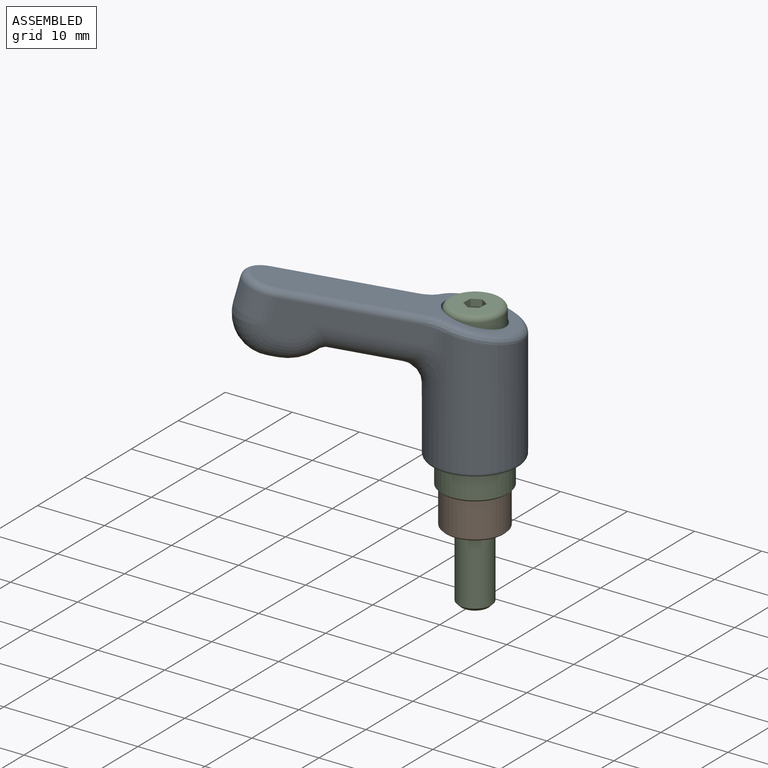
[diagram: assembled view]
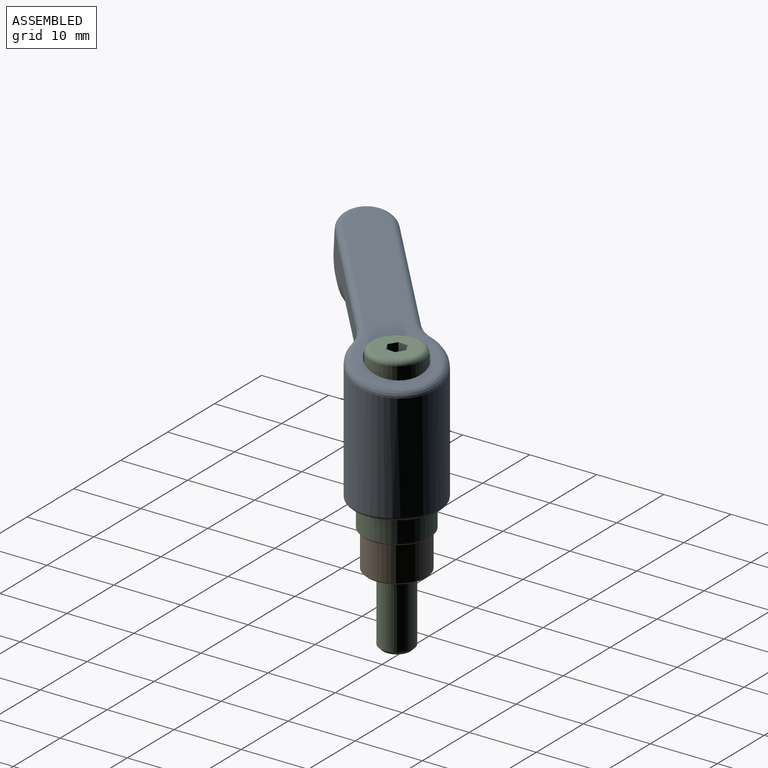
[diagram: assembled view, second angle]
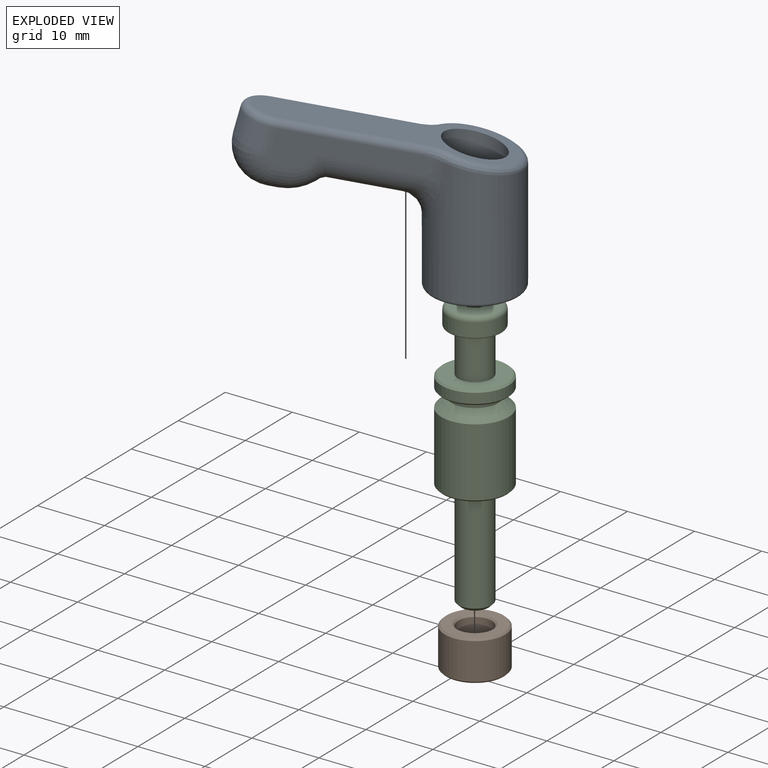
[diagram: exploded view]
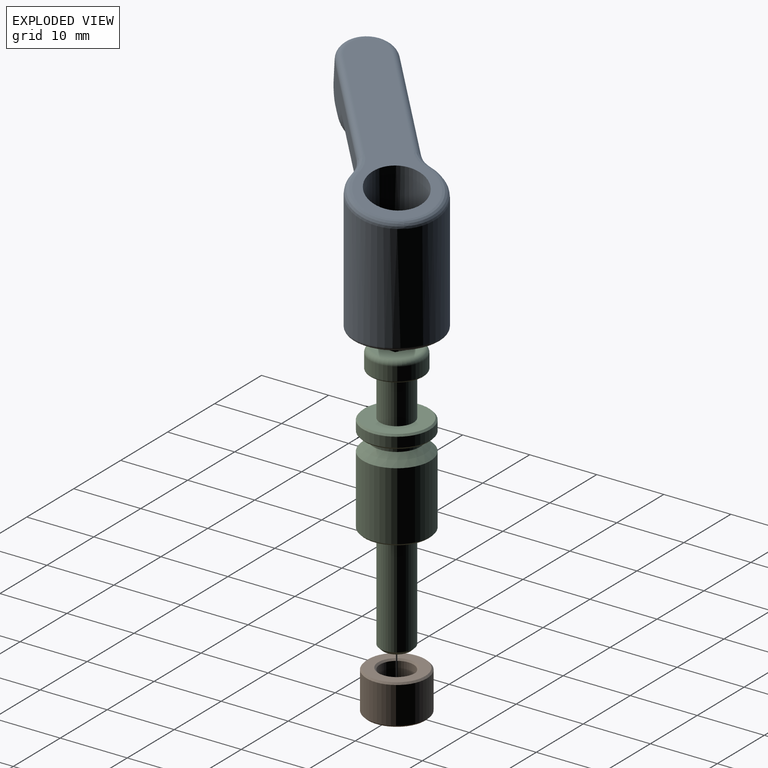
[diagram: exploded view, second angle]
ASSEMBLY  parts=3 mates=2
PART A: 29 faces, bbox 39.1x16.3x28.8 mm
  f0: cylinder r=4.15mm len=8.3mm, axis (0,0,-1), area 183.8mm2, adj f10,f11
  f1: torus R=6mm, axis (0,0,1), area 31.2mm2, adj f5,f7
  f2: bspline ~10.71x6.5mm, area 21mm2, adj f5,f10,f23,f25
  f3: torus R=1.5mm, axis (0,-1,0), area 79.9mm2, adj f8,f9,f18,f19
  f4: cylinder r=2.5mm len=5mm, axis (0,0,-1), area 15.7mm2, adj f11,f12
  f5: cylinder r=6.5mm len=18.47mm, axis (0,0,-1), area 632.7mm2, adj f1,f2,f14,f15,f16,f17,f23
  f6: cylinder r=5.1mm len=11mm, axis (0,0,-1), area 352.5mm2, adj f7,f12
  f7: plane 12x12mm, normal (0,0,-1), area 31.4mm2, adj f1,f6
  f8: plane 19.2x7.48mm, normal (0,-1,0), area 59.7mm2, adj f3,f13,f14,f18,f19,f20,f27
  f9: plane 19.2x7.48mm, normal (0,1,0), area 59.7mm2, adj f3,f13,f17,f18,f19,f20,f26
  f10: plane 35.66x13.22mm, normal (-0.26,0,0.97), area 180.8mm2, adj f0,f2,f23,f24,f25,f26,f27,f28
  f11: plane 8.3x8.3mm, normal (0,0,1), area 34.5mm2, adj f0,f4
  f12: plane 10.2x10.2mm, normal (0,0,-1), area 62.1mm2, adj f4,f6
  f13: cylinder r=4mm len=14.73mm, axis (-0.97,0,-0.26), area 148.2mm2, adj f8,f9,f15,f16,f21,f22
  f14: cylinder r=4mm len=2.59mm, axis (0,0,-1), area 6.1mm2, adj f5,f8,f15,f25
  f15: bspline ~7.29x5.25mm, area 30.2mm2, adj f5,f13,f14,f16
  f16: bspline ~7.29x5.25mm, area 30.2mm2, adj f5,f13,f15,f17
  f17: cylinder r=4mm len=2.59mm, axis (0,0,-1), area 6.1mm2, adj f5,f9,f16,f24
  f18: cylinder r=4mm len=8mm, axis (0.26,0,-0.97), area 44mm2, adj f3,f8,f9,f28
  f19: cylinder r=4mm len=8mm, axis (-0.97,0,-0.26), area 17.3mm2, adj f3,f8,f9,f20
  f20: torus R=2.5mm, axis (0,-1,0), area 73.3mm2, adj f8,f9,f19,f21,f22
  f21: bspline ~4.79x4mm, area 2.4mm2, adj f13,f20,f22
  f22: bspline ~4.79x4mm, area 2.4mm2, adj f13,f20,f21
  f23: bspline ~10.71x6.5mm, area 21mm2, adj f2,f5,f10,f24
  f24: bspline ~3.5x2.11mm, area 5.3mm2, adj f10,f17,f23,f26
  f25: bspline ~3.5x2.11mm, area 5.3mm2, adj f2,f10,f14,f27
  f26: cylinder r=1mm len=18.5mm, axis (-0.97,0,-0.26), area 29.7mm2, adj f9,f10,f24,f28
  f27: cylinder r=1mm len=18.5mm, axis (0.97,0,0.26), area 29.7mm2, adj f8,f10,f25,f28
  f28: torus R=3mm, axis (0.26,0,-0.97), area 17.9mm2, adj f10,f18,f26,f27
PART B: 8 faces, bbox 9x9x6 mm
  f0: cone r=4.25mm half-angle=45deg, axis (0,0,-1), area 9.7mm2, adj f5,f6
  f1: cone r=4.5mm half-angle=45deg, axis (0,0,1), area 9.7mm2, adj f5,f7
  f2: cone r=2.5mm half-angle=45deg, axis (0,0,1), area 5.8mm2, adj f4,f6
  f3: cone r=2.75mm half-angle=45deg, axis (0,0,-1), area 5.8mm2, adj f4,f7
  f4: cylinder r=2.5mm len=5.5mm, axis (0,0,-1), area 86.4mm2, adj f2,f3
  f5: cylinder r=4.5mm len=9mm, axis (0,0,-1), area 155.5mm2, adj f0,f1
  f6: plane 8.5x8.5mm, normal (0,0,1), area 33mm2, adj f0,f2
  f7: plane 8.5x8.5mm, normal (0,0,-1), area 33mm2, adj f1,f3
PART C: 32 faces, bbox 10x10x40.5 mm
  f0: cone r=2mm half-angle=45deg, axis (0,0,1), area 10mm2, adj f1,f31
  f1: cylinder r=2.5mm len=15.5mm, axis (0,0,1), area 243.5mm2, adj f0,f14
  f2: cone r=5mm half-angle=45deg, axis (0,0,1), area 10.8mm2, adj f13,f14
  f3: cone r=1732.05mm half-angle=60deg, axis (0,0,1), area 5.7mm2, adj f15,f16,f17,f18,f19,f20
  f4: torus R=3.25mm, axis (0,0,1), area 27.6mm2, adj f5,f24
  f5: cylinder r=4mm len=8mm, axis (0,0,1), area 50.3mm2, adj f4,f6
  f6: torus R=3.75mm, axis (0,0,1), area 9.6mm2, adj f5,f23
  f7: cylinder r=2.5mm len=6.5mm, axis (0,0,1), area 102.1mm2, adj f22,f23
  f8: cone r=5mm half-angle=45deg, axis (0,0,-1), area 10.8mm2, adj f9,f22
  f9: cylinder r=5mm len=10mm, axis (0,0,1), area 47.1mm2, adj f8,f10
  f10: cone r=4.75mm half-angle=45deg, axis (0,0,1), area 10.8mm2, adj f9,f21
  f11: cylinder r=3.5mm len=7mm, axis (0,0,1), area 22mm2, adj f12,f21
  f12: cone r=5mm half-angle=45deg, axis (0,0,-1), area 56.6mm2, adj f11,f13
  f13: cylinder r=5mm len=10.25mm, axis (0,0,1), area 322mm2, adj f2,f12
  f14: plane 9.5x9.5mm, normal (0,0,-1), area 51.2mm2, adj f1,f2
  f15: plane 1.08x0.63mm, normal (0,0,1), area 0.1mm2, adj f3,f25,f30
  f16: plane 1.08x0.63mm, normal (0,0,1), area 0.1mm2, adj f3,f25,f26
  f17: plane 1.25x0.36mm, normal (0,0,1), area 0.1mm2, adj f3,f26,f27
  f18: plane 1.08x0.63mm, normal (0,0,1), area 0.1mm2, adj f3,f27,f28
  f19: plane 1.08x0.63mm, normal (0,0,1), area 0.1mm2, adj f3,f28,f29
  f20: plane 1.25x0.36mm, normal (0,0,1), area 0.1mm2, adj f3,f29,f30
  f21: plane 9.5x9.5mm, normal (0,0,-1), area 32.4mm2, adj f10,f11
  f22: plane 9.5x9.5mm, normal (0,0,1), area 51.2mm2, adj f7,f8
  f23: plane 7.5x7.5mm, normal (0,0,-1), area 24.5mm2, adj f6,f7
  f24: plane 6.5x6.5mm, normal (0,0,1), area 27.8mm2, adj f4,f25,f26,f27,f28,f29,f30
  f25: plane 2x1.44mm, normal (-1,0,0), area 2.9mm2, adj f15,f16,f24,f26,f30
  f26: plane 2x1.25mm, normal (-0.5,0.87,0), area 2.9mm2, adj f16,f17,f24,f25,f27
  f27: plane 2x1.25mm, normal (0.5,0.87,0), area 2.9mm2, adj f17,f18,f24,f26,f28
  f28: plane 2x1.44mm, normal (1,0,0), area 2.9mm2, adj f18,f19,f24,f27,f29
  f29: plane 2x1.25mm, normal (0.5,-0.87,0), area 2.9mm2, adj f19,f20,f24,f28,f30
  f30: plane 2x1.25mm, normal (-0.5,-0.87,0), area 2.9mm2, adj f15,f20,f24,f25,f29
  f31: plane 4x4mm, normal (0,0,-1), area 12.6mm2, adj f0
PLACE A rot(axis=(0,0,-1),136.7deg) t=(-8.1,-9.47,3.46)mm
PLACE B rot(axis=(0,0,-1),32.8deg) t=(-8.1,-9.47,-3.04)mm
PLACE C rot(axis=(0,0,1),57.2deg) t=(-8.1,-9.47,-0.54)mm fixed
MATE revolute A.f0 <-> C.f2  axis (0,0,-1) through (-8.1,-9.47,14.46)mm
MATE revolute B.f0 <-> C.f2  axis (0,0,-1) through (-8.1,-9.47,-0.29)mm
